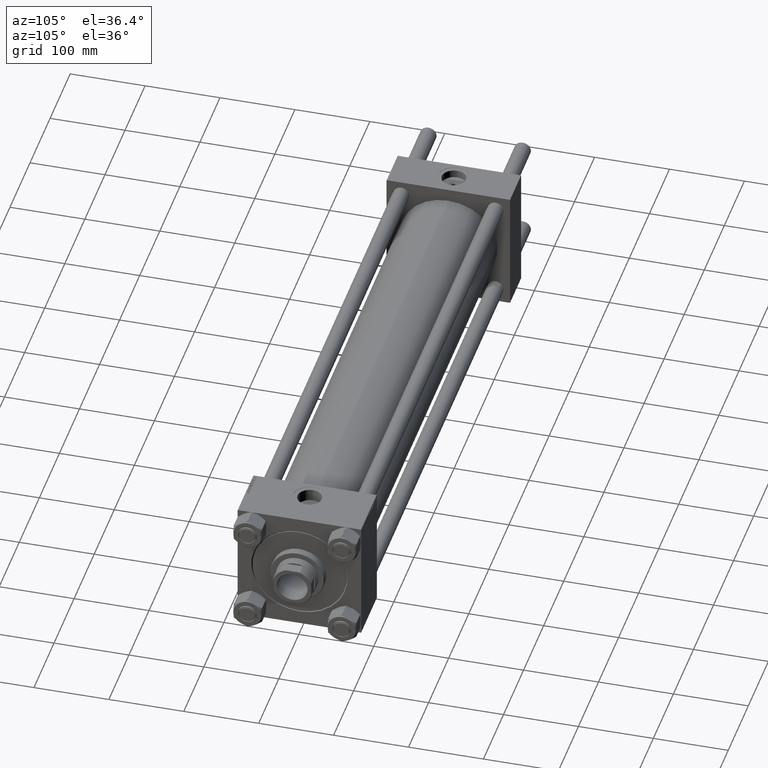
[diagram: clean part render]
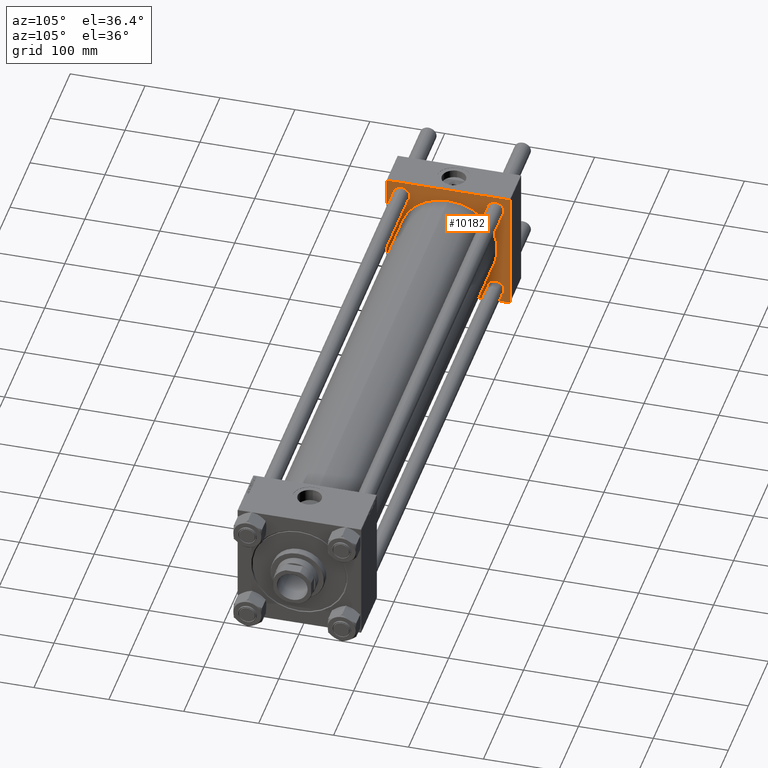
[diagram: same view with one face highlighted and labeled with its STEP entity id]
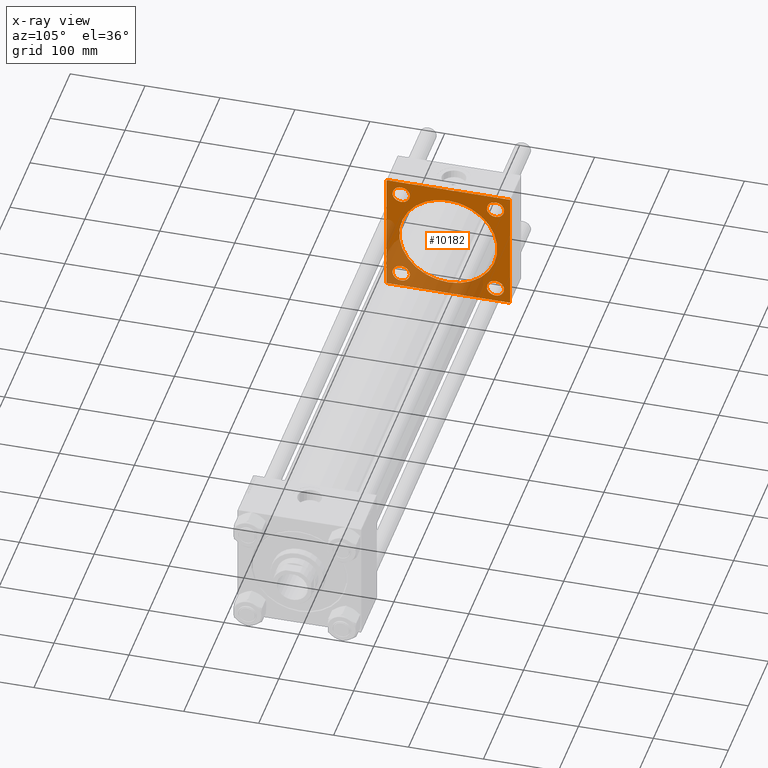
[diagram: x-ray of the same camera — body ghosted, the highlighted face saturated]
A machine part, auxiliary view. The second image highlights one B-rep face of the part: STEP entity #10182.
The next image is the same camera in x-ray: the body ghosted, the highlighted face saturated — about 33% of this face is hidden behind the body in this view.
In plain terms, the highlighted planar face has unit normal (-1, 0, 0).
Its self-contained STEP definition (entity closure, byte-faithful):
#129 = EDGE_LOOP ( 'NONE', ( #9609, #18514 ) ) ;
#237 = ORIENTED_EDGE ( 'NONE', *, *, #45629, .T. ) ;
#287 = AXIS2_PLACEMENT_3D ( 'NONE', #24279, #1353, #16616 ) ;
#502 = CARTESIAN_POINT ( 'NONE',  ( 55.00000000000000000, 62.95000000000000284, 74.44999999999984652 ) ) ;
#705 = CARTESIAN_POINT ( 'NONE',  ( 55.00000000000000000, 62.95000000000000284, 62.95000000000000284 ) ) ;
#1353 = DIRECTION ( 'NONE',  ( 1.000000000000000000, -0.000000000000000000, -0.000000000000000000 ) ) ;
#1812 = CARTESIAN_POINT ( 'NONE',  ( 55.00000000000000000, -82.00000000000000000, -82.50000000000000000 ) ) ;
#2362 = DIRECTION ( 'NONE',  ( -0.000000000000000000, 0.7071067811865474617, 0.7071067811865474617 ) ) ;
#2745 = FACE_BOUND ( 'NONE', #13896, .T. ) ;
#3035 = VERTEX_POINT ( 'NONE', #46767 ) ;
#3519 = CIRCLE ( 'NONE', #287, 65.50000000000001421 ) ;
#3615 = VERTEX_POINT ( 'NONE', #10056 ) ;
#3678 = VECTOR ( 'NONE', #13007, 1000.000000000000000 ) ;
#4257 = LINE ( 'NONE', #8071, #29230 ) ;
#4361 = CARTESIAN_POINT ( 'NONE',  ( 55.00000000000000000, 62.95000000000000284, -62.95000000000000284 ) ) ;
#4677 = EDGE_CURVE ( 'NONE', #34494, #7747, #4257, .T. ) ;
#5409 = ORIENTED_EDGE ( 'NONE', *, *, #23195, .F. ) ;
#5515 = CARTESIAN_POINT ( 'NONE',  ( 55.00000000000000000, -62.94999999999998153, -74.44999999999986073 ) ) ;
#5620 = VERTEX_POINT ( 'NONE', #5515 ) ;
#5627 = VERTEX_POINT ( 'NONE', #13394 ) ;
#6256 = CARTESIAN_POINT ( 'NONE',  ( 55.00000000000000000, 62.95000000000000284, -74.44999999999984652 ) ) ;
#6644 = EDGE_LOOP ( 'NONE', ( #11056, #21653 ) ) ;
#7423 = DIRECTION ( 'NONE',  ( -1.000000000000000000, 0.000000000000000000, 0.000000000000000000 ) ) ;
#7543 = AXIS2_PLACEMENT_3D ( 'NONE', #705, #27689, #31988 ) ;
#7594 = CARTESIAN_POINT ( 'NONE',  ( 55.00000000000000000, -62.94999999999998153, -51.45000000000017337 ) ) ;
#7664 = AXIS2_PLACEMENT_3D ( 'NONE', #4361, #27527, #31581 ) ;
#7747 = VERTEX_POINT ( 'NONE', #35502 ) ;
#7804 = CARTESIAN_POINT ( 'NONE',  ( 55.00000000000004974, 0.000000000000000000, 0.000000000000000000 ) ) ;
#7949 = EDGE_CURVE ( 'NONE', #7747, #3035, #37999, .T. ) ;
#8071 = CARTESIAN_POINT ( 'NONE',  ( 55.00000000000000000, 82.00000000000005684, 82.50000000000002842 ) ) ;
#8254 = CARTESIAN_POINT ( 'NONE',  ( 55.00000000000000000, -62.94999999999998153, -62.95000000000001705 ) ) ;
#8445 = VERTEX_POINT ( 'NONE', #29198 ) ;
#9092 = EDGE_CURVE ( 'NONE', #15542, #36463, #35714, .T. ) ;
#9609 = ORIENTED_EDGE ( 'NONE', *, *, #31051, .T. ) ;
#9628 = LINE ( 'NONE', #14443, #46653 ) ;
#9631 = DIRECTION ( 'NONE',  ( 0.000000000000000000, 0.000000000000000000, 1.000000000000000000 ) ) ;
#10056 = CARTESIAN_POINT ( 'NONE',  ( 55.00000000000000000, 62.95000000000000284, 51.45000000000015916 ) ) ;
#10182 = ADVANCED_FACE ( 'NONE', ( #29479, #2745, #18520, #37844, #33537, #44726 ), #49540, .F. ) ;
#10383 = DIRECTION ( 'NONE',  ( 0.000000000000000000, -1.000000000000000000, -1.682156097916903588E-16 ) ) ;
#10701 = EDGE_CURVE ( 'NONE', #5620, #50225, #48774, .T. ) ;
#11056 = ORIENTED_EDGE ( 'NONE', *, *, #10701, .T. ) ;
#11373 = EDGE_CURVE ( 'NONE', #26229, #33995, #24467, .T. ) ;
#12495 = VERTEX_POINT ( 'NONE', #44369 ) ;
#13007 = DIRECTION ( 'NONE',  ( 0.000000000000000000, -1.682156097916903588E-16, -1.000000000000000000 ) ) ;
#13394 = CARTESIAN_POINT ( 'NONE',  ( 55.00000000000000000, -82.49999999999997158, 82.00000000000001421 ) ) ;
#13614 = CIRCLE ( 'NONE', #29868, 11.49999999999984368 ) ;
#13767 = AXIS2_PLACEMENT_3D ( 'NONE', #37949, #18622, #34134 ) ;
#13896 = EDGE_LOOP ( 'NONE', ( #16262, #38757 ) ) ;
#14063 = LINE ( 'NONE', #38213, #28763 ) ;
#14194 = DIRECTION ( 'NONE',  ( -1.000000000000000000, 0.000000000000000000, 0.000000000000000000 ) ) ;
#14443 = CARTESIAN_POINT ( 'NONE',  ( 55.00000000000000000, 82.50000000000002842, -82.49999999999997158 ) ) ;
#14801 = CARTESIAN_POINT ( 'NONE',  ( 55.00000000000000000, -62.94999999999998153, -62.95000000000001705 ) ) ;
#15212 = CIRCLE ( 'NONE', #39612, 65.50000000000001421 ) ;
#15542 = VERTEX_POINT ( 'NONE', #38208 ) ;
#16059 = CARTESIAN_POINT ( 'NONE',  ( 55.00000000000004974, 8.021436534415166404E-15, -65.50000000000001421 ) ) ;
#16262 = ORIENTED_EDGE ( 'NONE', *, *, #20933, .T. ) ;
#16591 = VERTEX_POINT ( 'NONE', #502 ) ;
#16616 = DIRECTION ( 'NONE',  ( 0.000000000000000000, 0.000000000000000000, 1.000000000000000000 ) ) ;
#16634 = VERTEX_POINT ( 'NONE', #47286 ) ;
#16640 = DIRECTION ( 'NONE',  ( -1.000000000000000000, 0.000000000000000000, 0.000000000000000000 ) ) ;
#16806 = CIRCLE ( 'NONE', #43608, 11.49999999999984368 ) ;
#17911 = CARTESIAN_POINT ( 'NONE',  ( 55.00000000000000000, 82.50000000000002842, 82.50000000000002842 ) ) ;
#18275 = CARTESIAN_POINT ( 'NONE',  ( 55.00000000000000000, 82.50000000000002842, 82.00000000000005684 ) ) ;
#18435 = ORIENTED_EDGE ( 'NONE', *, *, #7949, .T. ) ;
#18514 = ORIENTED_EDGE ( 'NONE', *, *, #9092, .T. ) ;
#18520 = FACE_BOUND ( 'NONE', #129, .T. ) ;
#18622 = DIRECTION ( 'NONE',  ( -1.000000000000000000, 0.000000000000000000, 0.000000000000000000 ) ) ;
#19178 = ORIENTED_EDGE ( 'NONE', *, *, #26805, .T. ) ;
#19507 = DIRECTION ( 'NONE',  ( 0.000000000000000000, 0.000000000000000000, 1.000000000000000000 ) ) ;
#19903 = CARTESIAN_POINT ( 'NONE',  ( 55.00000000000000000, 82.50000000000002842, 82.50000000000002842 ) ) ;
#20933 = EDGE_CURVE ( 'NONE', #33995, #26229, #42604, .T. ) ;
#21653 = ORIENTED_EDGE ( 'NONE', *, *, #32289, .T. ) ;
#21785 = ORIENTED_EDGE ( 'NONE', *, *, #31790, .F. ) ;
#22837 = CARTESIAN_POINT ( 'NONE',  ( 55.00000000000000000, -62.94999999999998153, 62.95000000000001705 ) ) ;
#22959 = DIRECTION ( 'NONE',  ( 0.000000000000000000, 0.000000000000000000, 1.000000000000000000 ) ) ;
#23195 = EDGE_CURVE ( 'NONE', #34494, #45160, #38222, .T. ) ;
#23301 = ORIENTED_EDGE ( 'NONE', *, *, #42514, .T. ) ;
#23341 = DIRECTION ( 'NONE',  ( 1.000000000000000000, -0.000000000000000000, -0.000000000000000000 ) ) ;
#23401 = VECTOR ( 'NONE', #44966, 1000.000000000000114 ) ;
#24279 = CARTESIAN_POINT ( 'NONE',  ( 55.00000000000004974, 0.000000000000000000, 0.000000000000000000 ) ) ;
#24467 = CIRCLE ( 'NONE', #36605, 11.49999999999984368 ) ;
#25022 = CARTESIAN_POINT ( 'NONE',  ( 55.00000000000000000, -62.94999999999998153, 51.45000000000017337 ) ) ;
#25670 = CARTESIAN_POINT ( 'NONE',  ( 55.00000000000000000, 0.000000000000000000, 0.000000000000000000 ) ) ;
#26229 = VERTEX_POINT ( 'NONE', #38692 ) ;
#26805 = EDGE_CURVE ( 'NONE', #5627, #8445, #36919, .T. ) ;
#26895 = VERTEX_POINT ( 'NONE', #1812 ) ;
#27146 = VECTOR ( 'NONE', #46114, 1000.000000000000000 ) ;
#27153 = DIRECTION ( 'NONE',  ( -1.000000000000000000, 0.000000000000000000, 0.000000000000000000 ) ) ;
#27527 = DIRECTION ( 'NONE',  ( -1.000000000000000000, 0.000000000000000000, 0.000000000000000000 ) ) ;
#27689 = DIRECTION ( 'NONE',  ( -1.000000000000000000, 0.000000000000000000, 0.000000000000000000 ) ) ;
#28317 = ORIENTED_EDGE ( 'NONE', *, *, #44752, .T. ) ;
#28407 = LINE ( 'NONE', #43903, #48283 ) ;
#28654 = DIRECTION ( 'NONE',  ( 0.000000000000000000, 0.7071067811865376918, -0.7071067811865574537 ) ) ;
#28763 = VECTOR ( 'NONE', #2362, 1000.000000000000114 ) ;
#29198 = CARTESIAN_POINT ( 'NONE',  ( 55.00000000000000000, -82.50000000000000000, -81.99999999999998579 ) ) ;
#29218 = LINE ( 'NONE', #33026, #23401 ) ;
#29230 = VECTOR ( 'NONE', #50298, 1000.000000000000114 ) ;
#29479 = FACE_BOUND ( 'NONE', #6644, .T. ) ;
#29868 = AXIS2_PLACEMENT_3D ( 'NONE', #14801, #7423, #22959 ) ;
#30387 = CARTESIAN_POINT ( 'NONE',  ( 55.00000000000000000, 62.95000000000000284, 62.95000000000000284 ) ) ;
#30634 = DIRECTION ( 'NONE',  ( -1.000000000000000000, 0.000000000000000000, 0.000000000000000000 ) ) ;
#31051 = EDGE_CURVE ( 'NONE', #36463, #15542, #16806, .T. ) ;
#31209 = DIRECTION ( 'NONE',  ( 0.000000000000000000, 0.000000000000000000, 1.000000000000000000 ) ) ;
#31581 = DIRECTION ( 'NONE',  ( 0.000000000000000000, 0.000000000000000000, 1.000000000000000000 ) ) ;
#31790 = EDGE_CURVE ( 'NONE', #43962, #16634, #15212, .T. ) ;
#31913 = EDGE_CURVE ( 'NONE', #16591, #3615, #43644, .T. ) ;
#31988 = DIRECTION ( 'NONE',  ( 0.000000000000000000, 0.000000000000000000, 1.000000000000000000 ) ) ;
#32098 = ORIENTED_EDGE ( 'NONE', *, *, #4677, .T. ) ;
#32221 = DIRECTION ( 'NONE',  ( -1.000000000000000000, 0.000000000000000000, 0.000000000000000000 ) ) ;
#32289 = EDGE_CURVE ( 'NONE', #50225, #5620, #13614, .T. ) ;
#32716 = DIRECTION ( 'NONE',  ( 0.000000000000000000, 0.000000000000000000, 1.000000000000000000 ) ) ;
#32892 = EDGE_CURVE ( 'NONE', #3035, #5627, #29218, .T. ) ;
#33026 = CARTESIAN_POINT ( 'NONE',  ( 55.00000000000000000, -82.49999999999997158, 82.00000000000001421 ) ) ;
#33537 = FACE_BOUND ( 'NONE', #45411, .T. ) ;
#33995 = VERTEX_POINT ( 'NONE', #6256 ) ;
#34134 = DIRECTION ( 'NONE',  ( 0.000000000000000000, 0.000000000000000000, 1.000000000000000000 ) ) ;
#34494 = VERTEX_POINT ( 'NONE', #18275 ) ;
#35502 = CARTESIAN_POINT ( 'NONE',  ( 55.00000000000000000, 82.00000000000005684, 82.50000000000002842 ) ) ;
#35714 = CIRCLE ( 'NONE', #13767, 11.49999999999984368 ) ;
#35727 = EDGE_LOOP ( 'NONE', ( #23301, #45658 ) ) ;
#35785 = CARTESIAN_POINT ( 'NONE',  ( 55.00000000000000000, 62.95000000000000284, -62.95000000000000284 ) ) ;
#36414 = CARTESIAN_POINT ( 'NONE',  ( 55.00000000000000000, -82.49999999999997158, 82.50000000000001421 ) ) ;
#36463 = VERTEX_POINT ( 'NONE', #25022 ) ;
#36605 = AXIS2_PLACEMENT_3D ( 'NONE', #35785, #32221, #32716 ) ;
#36919 = LINE ( 'NONE', #36414, #3678 ) ;
#37748 = EDGE_LOOP ( 'NONE', ( #46678, #28317, #5409, #32098, #18435, #39025, #19178, #237 ) ) ;
#37844 = FACE_BOUND ( 'NONE', #35727, .T. ) ;
#37949 = CARTESIAN_POINT ( 'NONE',  ( 55.00000000000000000, -62.94999999999998153, 62.95000000000001705 ) ) ;
#37999 = LINE ( 'NONE', #17911, #49576 ) ;
#38004 = DIRECTION ( 'NONE',  ( 0.000000000000000000, 0.000000000000000000, 1.000000000000000000 ) ) ;
#38208 = CARTESIAN_POINT ( 'NONE',  ( 55.00000000000000000, -62.94999999999998153, 74.44999999999986073 ) ) ;
#38213 = CARTESIAN_POINT ( 'NONE',  ( 55.00000000000000000, 82.50000000000002842, -82.00000000000000000 ) ) ;
#38222 = LINE ( 'NONE', #19903, #27146 ) ;
#38692 = CARTESIAN_POINT ( 'NONE',  ( 55.00000000000000000, 62.95000000000000284, -51.45000000000015916 ) ) ;
#38757 = ORIENTED_EDGE ( 'NONE', *, *, #11373, .T. ) ;
#39025 = ORIENTED_EDGE ( 'NONE', *, *, #32892, .T. ) ;
#39288 = DIRECTION ( 'NONE',  ( 0.000000000000000000, 0.000000000000000000, 1.000000000000000000 ) ) ;
#39566 = ORIENTED_EDGE ( 'NONE', *, *, #43749, .F. ) ;
#39612 = AXIS2_PLACEMENT_3D ( 'NONE', #7804, #23341, #19507 ) ;
#41441 = AXIS2_PLACEMENT_3D ( 'NONE', #25670, #14194, #9631 ) ;
#42223 = CARTESIAN_POINT ( 'NONE',  ( 55.00000000000000000, 82.50000000000002842, -82.00000000000000000 ) ) ;
#42514 = EDGE_CURVE ( 'NONE', #3615, #16591, #43312, .T. ) ;
#42604 = CIRCLE ( 'NONE', #7664, 11.49999999999984368 ) ;
#42849 = AXIS2_PLACEMENT_3D ( 'NONE', #30387, #30634, #38004 ) ;
#43312 = CIRCLE ( 'NONE', #7543, 11.49999999999984368 ) ;
#43608 = AXIS2_PLACEMENT_3D ( 'NONE', #22837, #27153, #31209 ) ;
#43644 = CIRCLE ( 'NONE', #42849, 11.49999999999984368 ) ;
#43749 = EDGE_CURVE ( 'NONE', #16634, #43962, #3519, .T. ) ;
#43903 = CARTESIAN_POINT ( 'NONE',  ( 55.00000000000000000, -82.00000000000000000, -82.50000000000000000 ) ) ;
#43962 = VERTEX_POINT ( 'NONE', #16059 ) ;
#44369 = CARTESIAN_POINT ( 'NONE',  ( 55.00000000000000000, 82.00000000000005684, -82.49999999999997158 ) ) ;
#44707 = AXIS2_PLACEMENT_3D ( 'NONE', #8254, #16640, #39288 ) ;
#44726 = FACE_OUTER_BOUND ( 'NONE', #37748, .T. ) ;
#44752 = EDGE_CURVE ( 'NONE', #12495, #45160, #14063, .T. ) ;
#44877 = DIRECTION ( 'NONE',  ( 0.000000000000000000, -1.000000000000000000, -8.410780489584519171E-17 ) ) ;
#44966 = DIRECTION ( 'NONE',  ( -0.000000000000000000, -0.7071067811865474617, -0.7071067811865474617 ) ) ;
#45160 = VERTEX_POINT ( 'NONE', #42223 ) ;
#45393 = EDGE_CURVE ( 'NONE', #12495, #26895, #9628, .T. ) ;
#45411 = EDGE_LOOP ( 'NONE', ( #39566, #21785 ) ) ;
#45629 = EDGE_CURVE ( 'NONE', #8445, #26895, #28407, .T. ) ;
#45658 = ORIENTED_EDGE ( 'NONE', *, *, #31913, .T. ) ;
#46114 = DIRECTION ( 'NONE',  ( 0.000000000000000000, 0.000000000000000000, -1.000000000000000000 ) ) ;
#46653 = VECTOR ( 'NONE', #10383, 1000.000000000000000 ) ;
#46678 = ORIENTED_EDGE ( 'NONE', *, *, #45393, .F. ) ;
#46767 = CARTESIAN_POINT ( 'NONE',  ( 55.00000000000000000, -81.99999999999997158, 82.50000000000001421 ) ) ;
#47286 = CARTESIAN_POINT ( 'NONE',  ( 55.00000000000004974, 0.000000000000000000, 65.50000000000001421 ) ) ;
#48283 = VECTOR ( 'NONE', #28654, 999.9999999999998863 ) ;
#48774 = CIRCLE ( 'NONE', #44707, 11.49999999999984368 ) ;
#49540 = PLANE ( 'NONE',  #41441 ) ;
#49576 = VECTOR ( 'NONE', #44877, 1000.000000000000000 ) ;
#50225 = VERTEX_POINT ( 'NONE', #7594 ) ;
#50298 = DIRECTION ( 'NONE',  ( 0.000000000000000000, -0.7071067811865474617, 0.7071067811865474617 ) ) ;